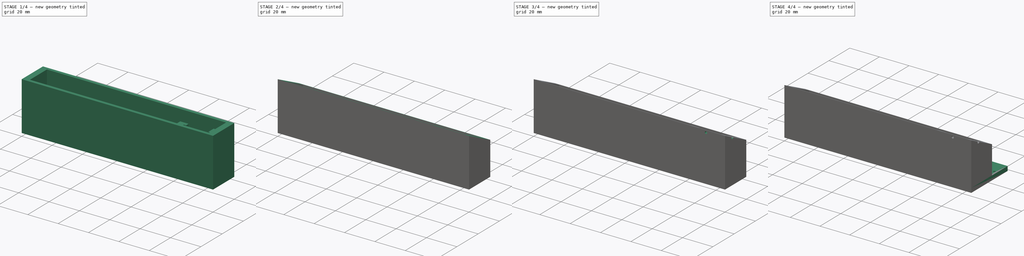
[diagram: build sequence overview — one tinted view per stage of 4, left to right]
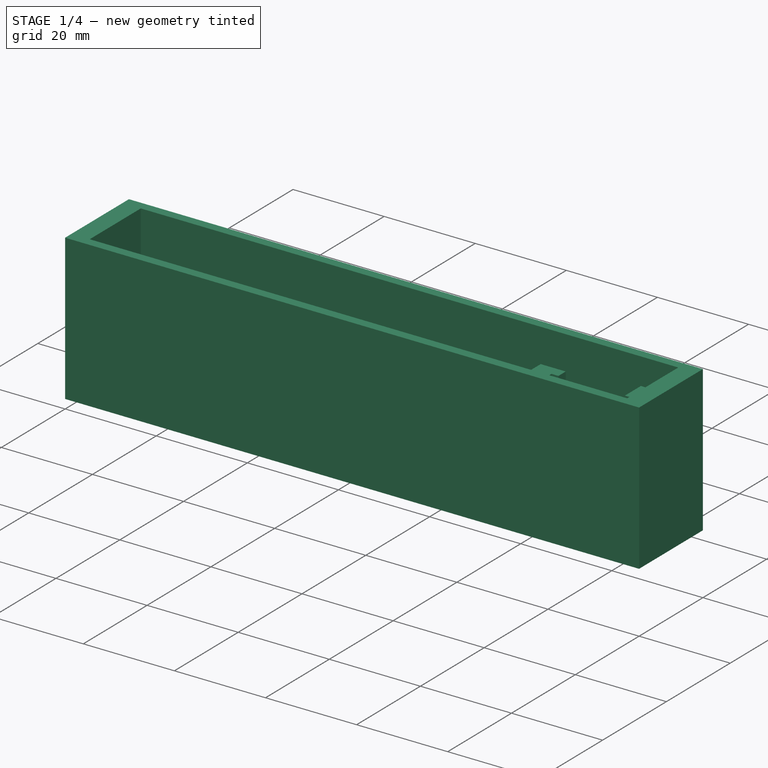
[diagram: stage 1 of 4 — iso view after this stage's code; geometry added in this stage tinted green]
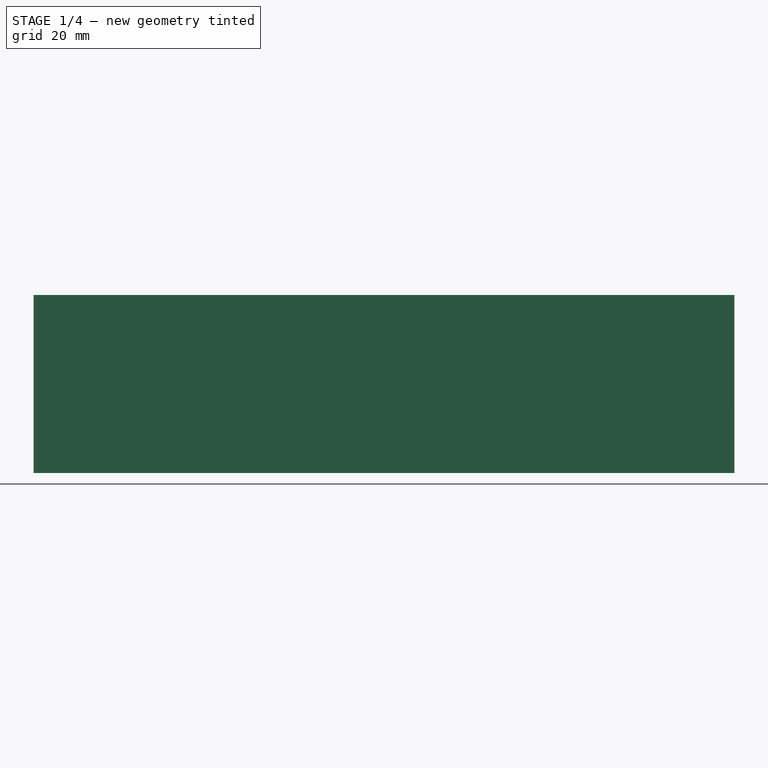
[diagram: stage 1 of 4 — front view after this stage's code; geometry added in this stage tinted green]
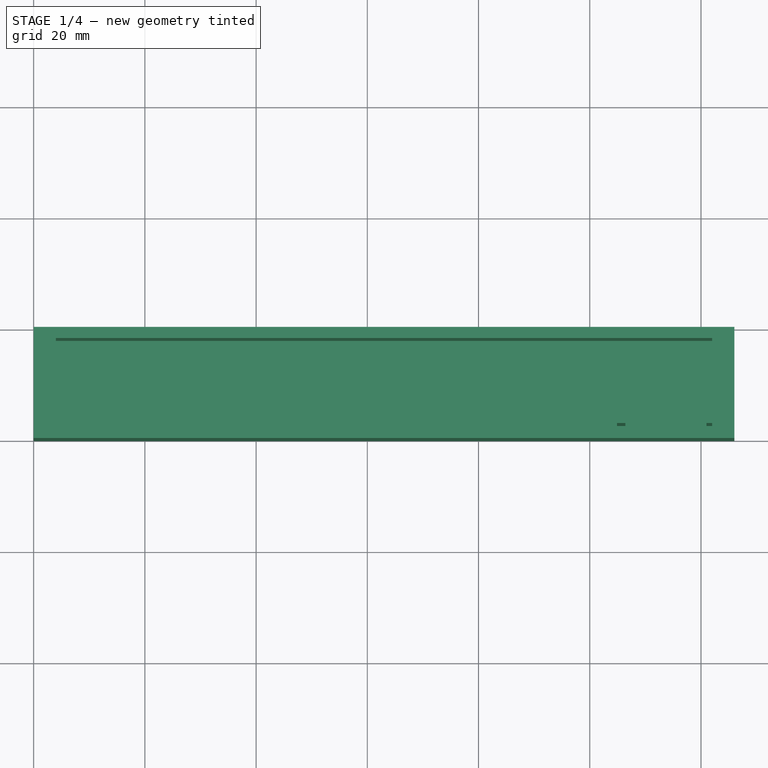
[diagram: stage 1 of 4 — top view after this stage's code; geometry added in this stage tinted green]
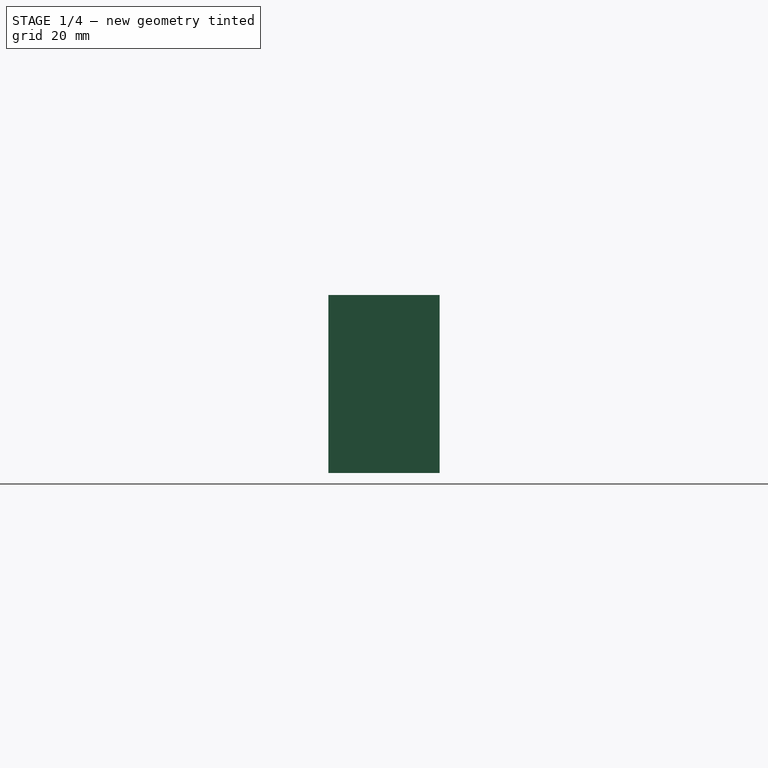
[diagram: stage 1 of 4 — right view after this stage's code; geometry added in this stage tinted green]
FCSTD DOCUMENT  (FreeCAD 1.0R39319 (Git))
Label: shield_charger
License: All rights reserved
LicenseURL: https://en.wikipedia.org/wiki/All_rights_reserved
objects: Sketcher::SketchObject×12, PartDesign::Pad×6, PartDesign::Pocket×6, PartDesign::Body×3, Spreadsheet::Sheet×1, PartDesign::Thickness×1, PartDesign::Draft×1
note: 69 computed .brp shape members not serialized (recipe doc carries the construction recipe); baked Part::Feature solids carry a one-line shape summary decoded from their .brp

FEATURE [Sketcher::SketchObject] Sketch
  ArcFitTolerance = 1e-06
  AttachmentSupport = -> [XY_Plane]
  FullyConstrained = true
  MakeInternals = false
  MapMode = 5
  expr: Constraints[8] = Spreadsheet.box_depth
  expr: Constraints[9] = <<Spreadsheet>>.box_width
  sketch-geometry (4):
    g0: LineSegment StartX=0 StartY=20 StartZ=0 EndX=0 EndY=0 EndZ=0
    g1: LineSegment StartX=0 StartY=0 StartZ=0 EndX=126 EndY=0 EndZ=0
    g2: LineSegment StartX=126 StartY=0 StartZ=0 EndX=126 EndY=20 EndZ=0
    g3: LineSegment StartX=126 StartY=20 StartZ=0 EndX=0 EndY=20 EndZ=0
  constraints (12):
    c: Coincident(g0,g1)
    c: Coincident(g1,g2)
    c: Coincident(g2,g3)
    c: Coincident(g3,g0)
    c: Vertical(g0)
    c: Vertical(g2)
    c: Horizontal(g1)
    c: Horizontal(g3)
    c: DistanceY(g0,g0) = 20
    c: DistanceX(g3,g3) = 126
    c: DistanceX(g0,g-1) = 0
    c: DistanceY(g0,g-1) = 0
FEATURE [PartDesign::Pad] Pad
  Direction = (0,0,1)
  Length = 32
  Length2 = 10
  Profile = -> Sketch
  ReferenceAxis = -> Sketch [N_Axis]
  Refine = true
  Suppressed = false
  Type = 0
  expr: Length = <<Spreadsheet>>.box_height
FEATURE [Spreadsheet::Sheet] Spreadsheet
  cells = A1='Box Width; B1(box_width)==126 mm; A2='Slope Height; B2(slope_height)==10 mm; A3='Box Height; B3(box_height)==32 mm; A4='Box Side Thickness; B4(box_side_thickness)==2 mm; A5='Box Depth; B5(box_depth)==20 mm; A6='Draft Angle; B6(draft_angle)=26.565; A8='USB Width; B8(usb_width)==7.6 mm; A9='USB Height; B9(usb_height)==2.6 mm; A10='USB X; B10(usb_x)==box_width - (pcb_width - usb_width) / 2 - box_inner_thickness - box_side_thickness; A11='USB Y; B11(usb_y)==box_side_thickness + pcb_thickness; A12='USB X Center; B12(usb_x_center)==usb_x - usb_width / 2; A13='USB Y Center; B13(usb_y_center)==usb_y + usb_height / 2; A15='LED Cut X; B15(led_cut_x)==usb_x + 2.5 mm; A16='LED Cut Y; B16(led_cut_y)==usb_y + usb_height; A17='LED Cut Size; B17(led_cut_size)==2 mm; A19='PCB Thickness; B19(pcb_thickness)==0.7 mm; A20='PCB Length; B20(pcb_length)==27.8 mm; A21='PCB Width; B21(pcb_width)==17.1 mm; A22='PCB Right Clip Height; B22(pcb_right_clip_height)==5 mm; A23='PCB Right Clip Width; B23(pcb_right_clip_width)==1 mm; A24='PCB Right Clip X; B24(pcb_right_clip_x)==box_width - box_side_thickness - box_inner_thickness; A25='PCB Right Clip Y; B25(pcb_right_clip_y)==box_side_thickness + pcb_thickness; A26='PCB Left Clip Height; B26(pcb_left_clip_height)==3 mm; A27='PCB Left Clip Width; B27(pcb_left_clip_width)==4 mm; A28='PCB Left Clip X; B28(pcb_left_clip_x)==box_width - box_side_thickness - pcb_width - box_inner_thickness; A29='PCB Left Clip Y; B29(pcb_left_clip_y)==box_side_thickness * -1; A30='PCB Left Clip Notch; B30(pcb_left_clip_notch)==1.5 mm; A31='PCB Screw X; B31(pcb_screw_x)==pcb_left_clip_x + pcb_width / 2; A32='PCB Screw Y; B32(pcb_screw_y)==box_side_thickness + pcb_length + thread_hole / 2; A34='Battery Container Height; B34(battery_container_height)==box_depth - box_side_thickness * 2; A35='Battery Container Width; B35(battery_container_width)==58 mm; A36='Battery Container Thickness; B36(battery_container_thickness)==3 mm; A37='Battery Container X; B37(battery_container_x)==box_side_thickness + 35 mm; A38='Battery Container Y; B38(battery_container_y)==box_side_thickness; A39='Battery Container Depth; B39(battery_container_depth)==12 mm; A40='Battery Container Left Side X; B40(battery_container_left_side_x)==battery_container_x; A41='Battery Container Right Side X; B41(battery_container_right_side_x)==battery_container_x + battery_container_thickness + battery_container_width; A42='Box Inner Thickness; B42(box_inner_thickness)==2 mm; A43='Thread Hole; B43(thread_hole)==1.5 mm; A44='Drafted Height; B44(drafted_height)==box_depth / cos(draft_angle); A45='Drafter Y Disposition; B45(drafted_y_disposition)==14.36 mm; A46='Rear Bottom Screw Y Disposition; B46(rear_bottom_screw_y_disposition)==1 mm; A47='Rear Top Left Screw X; B47(rear_top_left_screw_x)==box_side_thickness; A48='Rear Top Left Screw Y; B48(rear_top_left_screw_y)==drafted_height - box_side_thickness - drafted_y_disposition; A49='Rear Top Right Screw X; B49(rear_top_right_screw_x)==box_width - box_side_thickness; A50='Rear Top Right Screw Y; B50(rear_top_right_screw_y)==drafted_height - box_side_thickness - drafted_y_disposition; A51='Rear Bottom Left Screw X; B51(rear_bottom_left_screw_x)==box_side_thickness; A52='Rear Bottom Left Screw Y; B52(rear_bottom_left_screw_y)==box_side_thickness - drafted_y_disposition + rear_bottom_screw_y_disposition; A53='Rear Bottom Right Screw X; B53(rear_bottom_right_screw_x)==box_width - box_side_thickness; A54='Rear Bottom Right Screw Y; B54(rear_bottom_right_screw_y)==box_side_thickness - drafted_y_disposition + rear_bottom_screw_y_disposition; A55='Rear Screw Length; B55(rear_screw_length)==4 mm; A57='Battery Thickness; B57(battery_thickness)==16.3 mm; A59='Rear Cover Y Displacement; B59(rear_cover_y_displacement)==0 mm; A60='Rear Cover Top Left Screw X; B60(rear_cover_top_left_screw_x)==box_side_thickness; A61='Rear Cover Top Left Screw Y; B61(rear_cover_top_left_screw_y)==drafted_height - box_side_thickness; A62='Rear Cover Top Right Screw X; B62(rear_cover_top_right_screw_x)==box_width - box_side_thickness; A63='Rear Cover Top Right Screw Y; B63(rear_cover_top_right_screw_y)==drafted_height - box_side_thickness; A64='Rear Cover Bottom Left Screw X; B64(rear_cover_bottom_left_screw_x)==box_side_thickness; A65='Rear Cover Bottom Left Screw Y; B65(rear_cover_bottom_left_screw_y)==box_side_thickness + rear_bottom_screw_y_disposition; A66='Rear Cover Bottom Right Screw X; B66(rear_cover_bottom_right_screw_x)==box_width - box_side_thickness; A67='Rear Cover Bottom Right Screw Y; B67(rear_cover_bottom_right_screw_y)==box_side_thickness + rear_bottom_screw_y_disposition; A68='Rear Cover Battery Bottom Distance; B68(rear_cover_battery_bottom_distance)==box_height - 2 * box_side_thickness - battery_thickness + box_side_thickness * sin(draft_angle); A69='Rear Cover Battery Holder Height; B69(rear_cover_battery_holder_height)==box_depth - 2 * box_side_thickness; A71='Rear Cover Battery Holder Y; B71(rear_cover_battery_holder_y)==box_side_thickness / cos(draft_angle); A72='Rear Cover Battery Container Width; B72(rear_cover_battery_container_width)==battery_container_width - 10 mm; A73='Rear Cover Battery Container X; B73(rear_cover_battery_container_x)==battery_container_x + battery_container_thickness + (battery_container_width - rear_cover_battery_container_width) / 2; A75='Power Wire Thickness; B75(power_wire_thickness)==2 mm; A76='Power Wire Slit X; B76(power_wire_slit_x)==pcb_right_clip_height + box_side_thickness; A77='Power Wire Slit Y; B77(power_wire_slit_y)==box_height - tan(draft_angle) * power_wire_slit_x; A78='Power Wire Slit Length; B78(power_wire_slit_length)==box_side_thickness + box_inner_thickness + pcb_right_clip_width; A80='Box Coupler Left Screw X; B80(box_coupler_left_screw_x)==box_side_thickness; A81='Box Coupler Left Screw Y; B81(box_coupler_left_screw_y)==box_depth / 2; A82='Box Coupler Right Screw X; B82(box_coupler_right_screw_x)==box_width - box_side_thickness; A83='Box Coupler Right Screw Y; B83(box_coupler_right_screw_y)==box_depth / 2; A84='Box Coupler Screw Depth; B84(box_coupler_screw_depth)==10 mm; A86='Coupler Shield Overflow; B86(coupler_shield_overflow)==15 mm; A87='Coupler Width; B87(coupler_width)==126 mm; A88='Coupler Height; B88(coupler_height)==box_depth + coupler_shield_overflow; A89='Coupler Thickness; B89(coupler_thickness)==3 mm; A91='Coupler Box Left Screw X; B91(coupler_box_left_screw_x)==box_side_thickness; A92='Coupler Box Left Screw Y; B92(coupler_box_left_screw_y)==coupler_shield_overflow + box_depth / 2; A93='Coupler Box Right Screw X; B93(coupler_box_right_screw_x)==box_width - box_side_thickness; A94='Coupler Box Right Screw Y; B94(coupler_box_right_screw_y)==coupler_shield_overflow + box_depth / 2; A96='Coupler Screw Thickness; B96(coupler_screw_thickness)==2.5 mm; A97='Coupler Screw X Distance; B97(coupler_screw_x_distance)==5 mm; A98='Coupler Screw Y Distance; B98(coupler_screw_y_distance)==9.8 mm; A99='Coupler Shield Left Screw X; B99(coupler_shield_left_screw_x)==coupler_screw_x_distance; A100='Coupler Shield Left Screw Y; B100(coupler_shield_left_screw_y)==coupler_shield_overflow - coupler_screw_y_distance; A101='Coupler Shield Right Screw X; B101(coupler_shield_right_screw_x)==coupler_width - coupler_screw_x_distance; A102='Coupler Shield Right Screw Y; B102(coupler_shield_right_screw_y)==coupler_shield_overflow - coupler_screw_y_distance; A103='Coupler USB Cut Width; B103(coupler_usb_cut_width)==usb_width * 2; A104='Coupler USB Cut Heigh; B104(coupler_usb_cut_height)==usb_height * 2; A105='Coupler USB Cut X; B105(coupler_usb_cut_x)==usb_x_center - coupler_usb_cut_width / 2; A106='Coupler USB Cut Y; B106(coupler_usb_cut_y)==coupler_shield_overflow + usb_y_center - coupler_usb_cut_height / 2
FEATURE [Sketcher::SketchObject] Sketch001
  ArcFitTolerance = 1e-06
  AttachmentSupport = -> [XY_Plane]
  ExternalGeometry = -> [Sketch]
  FullyConstrained = true
  MakeInternals = false
  MapMode = 5
  expr: Constraints[10] = Spreadsheet.usb_x
  expr: Constraints[11] = Spreadsheet.usb_y
  expr: Constraints[12] = Spreadsheet.led_cut_size
  expr: Constraints[13] = Spreadsheet.led_cut_x
  expr: Constraints[14] = Spreadsheet.led_cut_y
  expr: Constraints[8] = Spreadsheet.usb_width
  expr: Constraints[9] = Spreadsheet.usb_height
  sketch-geometry (5):
    g0: LineSegment StartX=109.65 StartY=5.3 StartZ=0 EndX=109.65 EndY=2.7 EndZ=0
    g1: LineSegment StartX=109.65 StartY=2.7 StartZ=0 EndX=117.25 EndY=2.7 EndZ=0
    g2: LineSegment StartX=117.25 StartY=2.7 StartZ=0 EndX=117.25 EndY=5.3 EndZ=0
    g3: LineSegment StartX=117.25 StartY=5.3 StartZ=0 EndX=109.65 EndY=5.3 EndZ=0
    g4: Circle CenterX=119.75 CenterY=5.3 CenterZ=0 NormalX=0 NormalY=0 NormalZ=1 AngleXU=0 Radius=1
  constraints (15):
    c: Coincident(g0,g1)
    c: Coincident(g1,g2)
    c: Coincident(g2,g3)
    c: Coincident(g3,g0)
    c: Vertical(g0)
    c: Vertical(g2)
    c: Horizontal(g1)
    c: Horizontal(g3)
    c: DistanceX(g3,g3) = 7.6
    c: DistanceY(g0,g0) = 2.6
    c: DistanceX(g-1,g1) = 117.25
    c: DistanceY(g-1,g1) = 2.7
    c: Diameter(g4) = 2
    c: DistanceX(g-1,g4) = 119.75
    c: DistanceY(g-1,g4) = 5.3
FEATURE [PartDesign::Pocket] Pocket
  BaseFeature = -> Pad
  Direction = (0,0,-1)
  Length = 2
  Length2 = 5
  Profile = -> Sketch001
  ReferenceAxis = -> Sketch001 [N_Axis]
  Refine = true
  Reversed = true
  Suppressed = false
  Type = 0
  expr: Length = Spreadsheet.box_side_thickness
FEATURE [PartDesign::Thickness] Thickness
  Base = -> Pocket [Face5]
  BaseFeature = -> Pocket
  Intersection = false
  Join = 0
  Mode = 0
  Refine = true
  Reversed = true
  SupportTransform = false
  Suppressed = false
  Value = 2
  expr: Value = Spreadsheet.box_side_thickness
FEATURE [Sketcher::SketchObject] Sketch002
  ArcFitTolerance = 1e-06
  AttachmentSupport = -> [XY_Plane]
  FullyConstrained = true
  MakeInternals = false
  MapMode = 5
  expr: Constraints[10] = Spreadsheet.pcb_left_clip_height
  expr: Constraints[11] = Spreadsheet.pcb_left_clip_x
  expr: Constraints[20] = Spreadsheet.pcb_right_clip_width
  expr: Constraints[21] = Spreadsheet.pcb_right_clip_height
  expr: Constraints[22] = Spreadsheet.pcb_right_clip_x
  expr: Constraints[23] = Spreadsheet.pcb_right_clip_y
  expr: Constraints[24] = Spreadsheet.pcb_left_clip_y
  expr: Constraints[29] = Spreadsheet.pcb_left_clip_width
  expr: Constraints[39] = Spreadsheet.box_inner_thickness
  expr: Constraints[40] = Spreadsheet.box_side_thickness
  expr: Constraints[49] = Spreadsheet.box_depth - 2 * Spreadsheet.box_side_thickness
  expr: Constraints[4] = Spreadsheet.pcb_thickness
  expr: Constraints[50] = Spreadsheet.box_inner_thickness
  expr: Constraints[51] = Spreadsheet.box_side_thickness
  expr: Constraints[52] = Spreadsheet.box_side_thickness
  expr: Constraints[53] = Spreadsheet.box_depth - 2 * Spreadsheet.box_side_thickness
  expr: Constraints[5] = Spreadsheet.pcb_left_clip_notch
  sketch-geometry (18):
    g0: LineSegment StartX=100.9 StartY=2 StartZ=0 EndX=100.9 EndY=5 EndZ=0
    g1: LineSegment StartX=100.9 StartY=5 StartZ=0 EndX=106.4 EndY=5 EndZ=0
    g2: LineSegment StartX=106.4 StartY=5 StartZ=0 EndX=106.4 EndY=2.7 EndZ=0
    g3: LineSegment StartX=106.4 StartY=2.7 StartZ=0 EndX=104.9 EndY=2.7 EndZ=0
    g4: LineSegment StartX=104.9 StartY=2.7 StartZ=0 EndX=104.9 EndY=2 EndZ=0
    g5: LineSegment StartX=121 StartY=7.7 StartZ=0 EndX=121 EndY=2.7 EndZ=0
    g6: LineSegment StartX=121 StartY=2.7 StartZ=0 EndX=122 EndY=2.7 EndZ=0
    g7: LineSegment StartX=122 StartY=2.7 StartZ=0 EndX=122 EndY=7.7 EndZ=0
    g8: LineSegment StartX=122 StartY=7.7 StartZ=0 EndX=121 EndY=7.7 EndZ=0
    g9: LineSegment StartX=100.9 StartY=2 StartZ=0 EndX=104.9 EndY=2 EndZ=0
    g10: LineSegment StartX=122 StartY=18 StartZ=0 EndX=122 EndY=2 EndZ=0
    g11: LineSegment StartX=122 StartY=2 StartZ=0 EndX=124 EndY=2 EndZ=0
    g12: LineSegment StartX=124 StartY=2 StartZ=0 EndX=124 EndY=18 EndZ=0
    g13: LineSegment StartX=124 StartY=18 StartZ=0 EndX=122 EndY=18 EndZ=0
    g14: LineSegment StartX=2 StartY=18 StartZ=0 EndX=2 EndY=2 EndZ=0
    g15: LineSegment StartX=2 StartY=2 StartZ=0 EndX=4 EndY=2 EndZ=0
    g16: LineSegment StartX=4 StartY=2 StartZ=0 EndX=4 EndY=18 EndZ=0
    g17: LineSegment StartX=4 StartY=18 StartZ=0 EndX=2 EndY=18 EndZ=0
  constraints (54):
    c: Horizontal(g1)
    c: Coincident(g2,g1)
    c: Coincident(g3,g2)
    c: Coincident(g4,g3)
    c: DistanceY(g4,g3) = 0.7
    c: Distance(g3,g2) = 1.5
    c: Coincident(g0,g1)
    c: Vertical(g2)
    c: Vertical(g4)
    c: Horizontal(g3)
    c: DistanceY(g0,g0) = 3
    c: DistanceX(g-1,g4) = 104.9
    c: Coincident(g5,g6)
    c: Coincident(g6,g7)
    c: Coincident(g7,g8)
    c: Coincident(g8,g5)
    c: Vertical(g5)
    c: Vertical(g7)
    c: Horizontal(g6)
    c: Horizontal(g8)
    c: DistanceX(g6,g6) = 1
    c: DistanceY(g7,g7) = 5
    c: DistanceX(g-1,g6) = 122
    c: DistanceY(g-1,g6) = 2.7
    c: DistanceY(g4,g-1) = -2
    c: Coincident(g9,g0)
    c: Coincident(g9,g4)
    c: Horizontal(g9)
    c: Vertical(g0,g0)
    c: DistanceX(g9,g9) = 4
    c: Coincident(g10,g11)
    c: Coincident(g11,g12)
    c: Coincident(g12,g13)
    c: Coincident(g13,g10)
    c: Vertical(g10)
    c: Vertical(g12)
    c: Horizontal(g11)
    c: Horizontal(g13)
    c: DistanceX(g10,g6) = 0
    c: DistanceX(g13,g13) = 2
    c: DistanceY(g-1,g10) = 2
    c: Coincident(g14,g15)
    c: Coincident(g15,g16)
    c: Coincident(g16,g17)
    c: Coincident(g17,g14)
    c: Vertical(g14)
    c: Vertical(g16)
    c: Horizontal(g15)
    c: Horizontal(g17)
    c: DistanceY(g12,g12) = 16
    c: DistanceX(g17,g17) = 2
    c: DistanceX(g-1,g14) = 2
    c: DistanceY(g-1,g14) = 2
    c: DistanceY(g14,g14) = 16
FEATURE [PartDesign::Pad] Pad001
  BaseFeature = -> Thickness
  Direction = (0,0,1)
  Length = 32
  Length2 = 10
  Profile = -> Sketch002
  ReferenceAxis = -> Sketch002 [N_Axis]
  Refine = true
  Suppressed = false
  Type = 0
  expr: Length = Spreadsheet.box_height
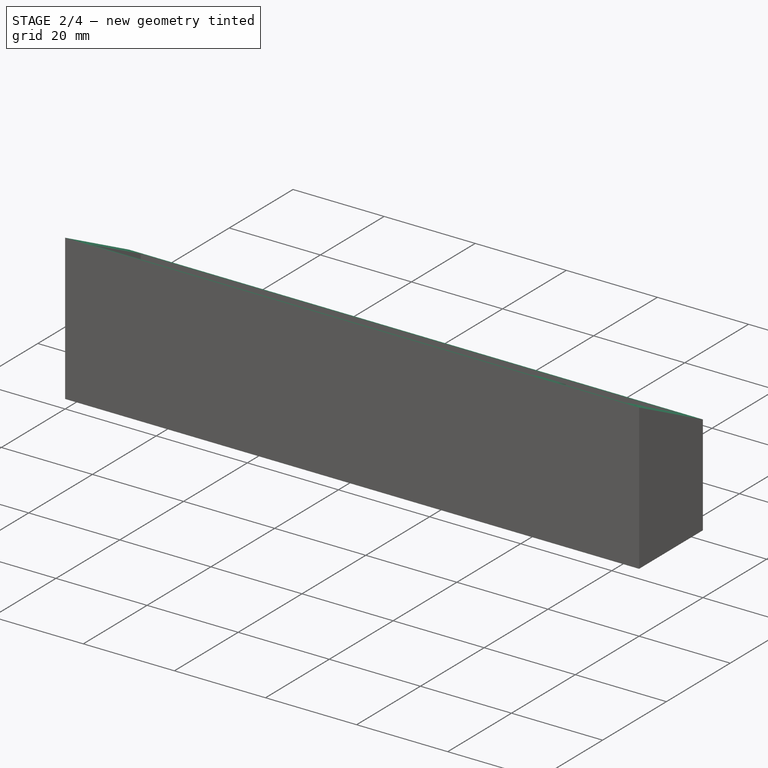
[diagram: stage 2 of 4 — iso view after this stage's code; geometry added in this stage tinted green]
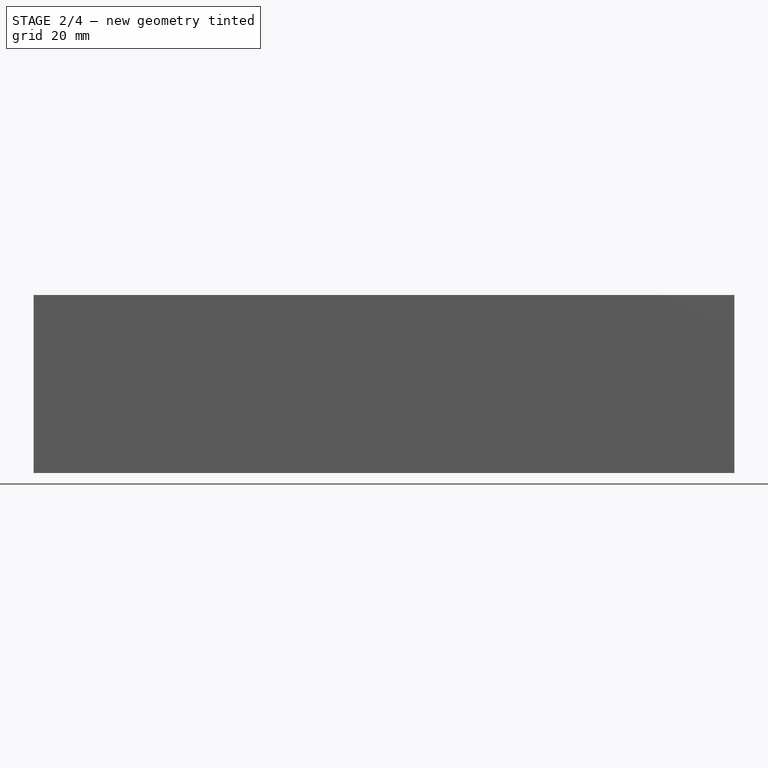
[diagram: stage 2 of 4 — front view after this stage's code; geometry added in this stage tinted green]
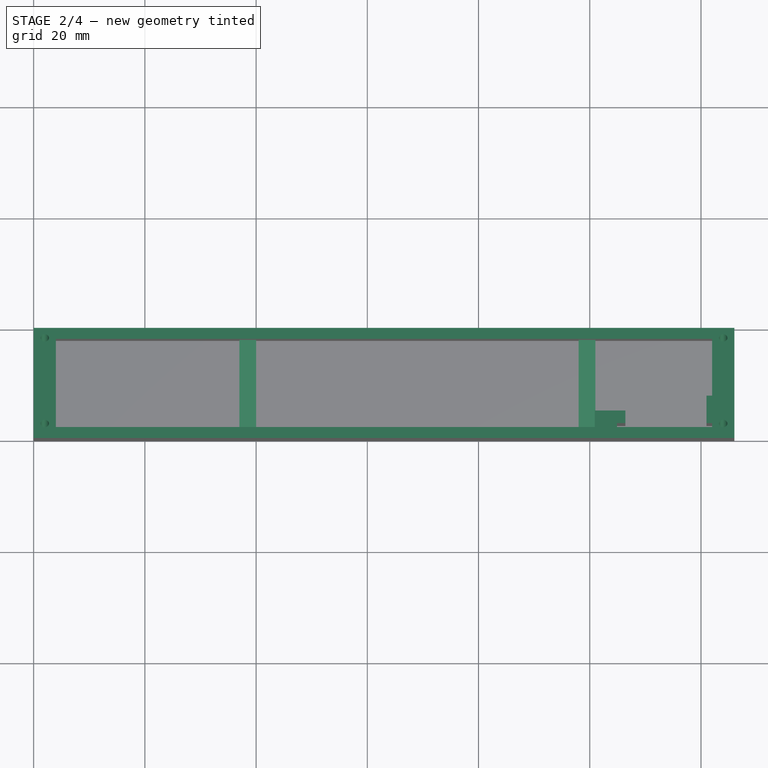
[diagram: stage 2 of 4 — top view after this stage's code; geometry added in this stage tinted green]
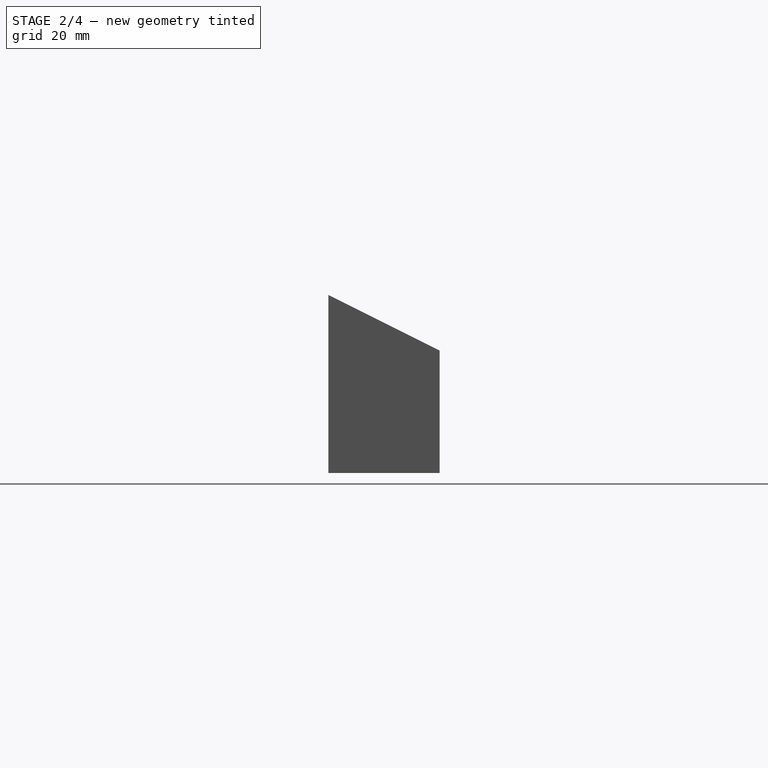
[diagram: stage 2 of 4 — right view after this stage's code; geometry added in this stage tinted green]
FEATURE [Sketcher::SketchObject] Sketch003
  ArcFitTolerance = 1e-06
  AttachmentSupport = -> [XY_Plane]
  FullyConstrained = true
  MakeInternals = false
  MapMode = 5
  expr: Constraints[16] = Spreadsheet.battery_container_height
  expr: Constraints[17] = Spreadsheet.battery_container_thickness
  expr: Constraints[18] = Spreadsheet.battery_container_height
  expr: Constraints[19] = Spreadsheet.battery_container_thickness
  expr: Constraints[20] = Spreadsheet.battery_container_y
  expr: Constraints[21] = Spreadsheet.battery_container_y
  expr: Constraints[22] = Spreadsheet.battery_container_left_side_x
  expr: Constraints[23] = Spreadsheet.battery_container_right_side_x
  sketch-geometry (8):
    g0: LineSegment StartX=37 StartY=18 StartZ=0 EndX=37 EndY=2 EndZ=0
    g1: LineSegment StartX=37 StartY=2 StartZ=0 EndX=40 EndY=2 EndZ=0
    g2: LineSegment StartX=40 StartY=2 StartZ=0 EndX=40 EndY=18 EndZ=0
    g3: LineSegment StartX=40 StartY=18 StartZ=0 EndX=37 EndY=18 EndZ=0
    g4: LineSegment StartX=98 StartY=18 StartZ=0 EndX=98 EndY=2 EndZ=0
    g5: LineSegment StartX=98 StartY=2 StartZ=0 EndX=101 EndY=2 EndZ=0
    g6: LineSegment StartX=101 StartY=2 StartZ=0 EndX=101 EndY=18 EndZ=0
    g7: LineSegment StartX=101 StartY=18 StartZ=0 EndX=98 EndY=18 EndZ=0
  constraints (24):
    c: Coincident(g0,g1)
    c: Coincident(g1,g2)
    c: Coincident(g2,g3)
    c: Coincident(g3,g0)
    c: Vertical(g0)
    c: Vertical(g2)
    c: Horizontal(g1)
    c: Horizontal(g3)
    c: Coincident(g4,g5)
    c: Coincident(g5,g6)
    c: Coincident(g6,g7)
    c: Coincident(g7,g4)
    c: Vertical(g4)
    c: Vertical(g6)
    c: Horizontal(g5)
    c: Horizontal(g7)
    c: DistanceY(g2,g2) = 16
    c: Distance(g3,g3) = 3
    c: DistanceY(g6,g6) = 16
    c: DistanceX(g7,g7) = 3
    c: DistanceY(g-1,g0) = 2
    c: DistanceY(g-1,g4) = 2
    c: DistanceX(g-1,g0) = 37
    c: DistanceX(g-1,g4) = 98
FEATURE [PartDesign::Pad] Pad002
  BaseFeature = -> Pad001
  Direction = (0,0,1)
  Length = 12
  Length2 = 10
  Profile = -> Sketch003
  ReferenceAxis = -> Sketch003 [N_Axis]
  Refine = true
  Suppressed = false
  Type = 0
  expr: Length = Spreadsheet.battery_container_depth
FEATURE [PartDesign::Draft] Draft
  Angle = 26.565
  Base = -> Pad002 [Face4]
  BaseFeature = -> Pad002
  NeutralPlane = -> Pad002 [Face3]
  Refine = true
  SupportTransform = false
  Suppressed = false
  expr: Angle = Spreadsheet.draft_angle
FEATURE [Sketcher::SketchObject] Sketch004
  ArcFitTolerance = 1e-06
  AttachmentSupport = -> [Draft]
  FullyConstrained = true
  MakeInternals = false
  MapMode = 5
  Placement = pos=(0,12.8,25.6) rot=(-1,0,0;0.463647rad)
  expr: Constraints[0] = Spreadsheet.thread_hole
  expr: Constraints[10] = Spreadsheet.rear_bottom_right_screw_y
  expr: Constraints[11] = Spreadsheet.rear_top_right_screw_y
  expr: Constraints[1] = Spreadsheet.thread_hole
  expr: Constraints[2] = Spreadsheet.thread_hole
  expr: Constraints[3] = Spreadsheet.thread_hole
  expr: Constraints[4] = Spreadsheet.rear_top_left_screw_x
  expr: Constraints[5] = Spreadsheet.rear_bottom_left_screw_x
  expr: Constraints[6] = Spreadsheet.rear_bottom_right_screw_x
  expr: Constraints[7] = Spreadsheet.rear_top_right_screw_x
  expr: Constraints[8] = Spreadsheet.rear_bottom_left_screw_y
  expr: Constraints[9] = Spreadsheet.rear_top_left_screw_y
  sketch-geometry (4):
    g0: Circle CenterX=124 CenterY=-11.36 CenterZ=0 NormalX=0 NormalY=0 NormalZ=1 AngleXU=0 Radius=0.75
    g1: Circle CenterX=2 CenterY=6.00067 CenterZ=0 NormalX=0 NormalY=0 NormalZ=1 AngleXU=0 Radius=0.75
    g2: Circle CenterX=2 CenterY=-11.36 CenterZ=0 NormalX=0 NormalY=0 NormalZ=1 AngleXU=0 Radius=0.75
    g3: Circle CenterX=124 CenterY=6.00067 CenterZ=0 NormalX=0 NormalY=0 NormalZ=1 AngleXU=0 Radius=0.75
  constraints (12):
    c: Diameter(g0) = 1.5
    c: Diameter(g1) = 1.5
    c: Diameter(g2) = 1.5
    c: Diameter(g3) = 1.5
    c: DistanceX(g-1,g1) = 2
    c: DistanceX(g-1,g2) = 2
    c: DistanceX(g-1,g0) = 124
    c: DistanceX(g-1,g3) = 124
    c: DistanceY(g-1,g2) = -11.36
    c: DistanceY(g-1,g1) = 6.00067
    c: DistanceY(g-1,g0) = -11.36
    c: DistanceY(g-1,g3) = 6.00067
FEATURE [PartDesign::Pocket] Pocket001
  BaseFeature = -> Draft
  Direction = (0,-0.447213,-0.894428)
  Length = 4
  Length2 = 5
  Profile = -> Sketch004
  ReferenceAxis = -> Sketch004 [N_Axis]
  Refine = true
  Suppressed = false
  Type = 0
  expr: Length = Spreadsheet.rear_screw_length
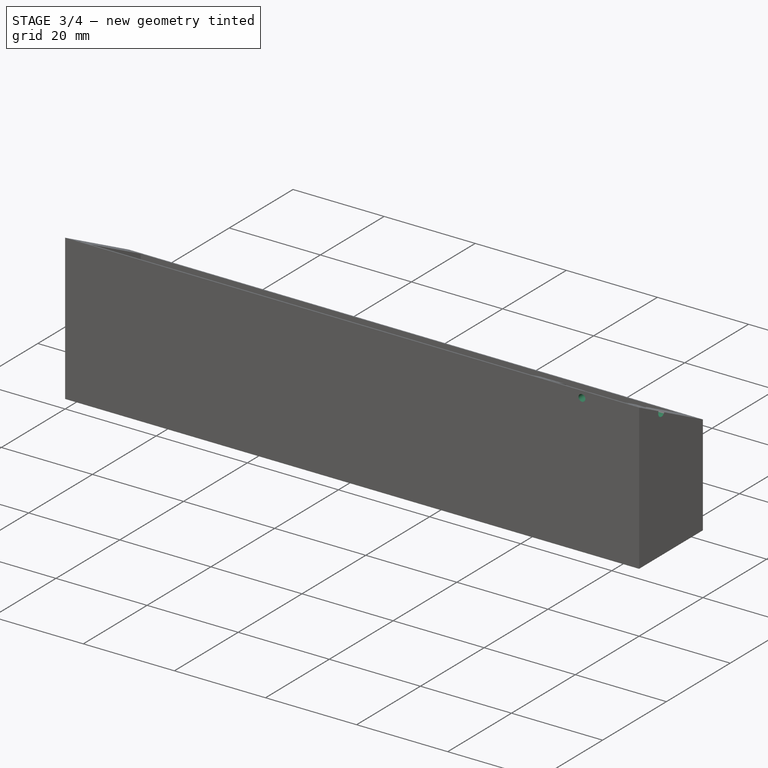
[diagram: stage 3 of 4 — iso view after this stage's code; geometry added in this stage tinted green]
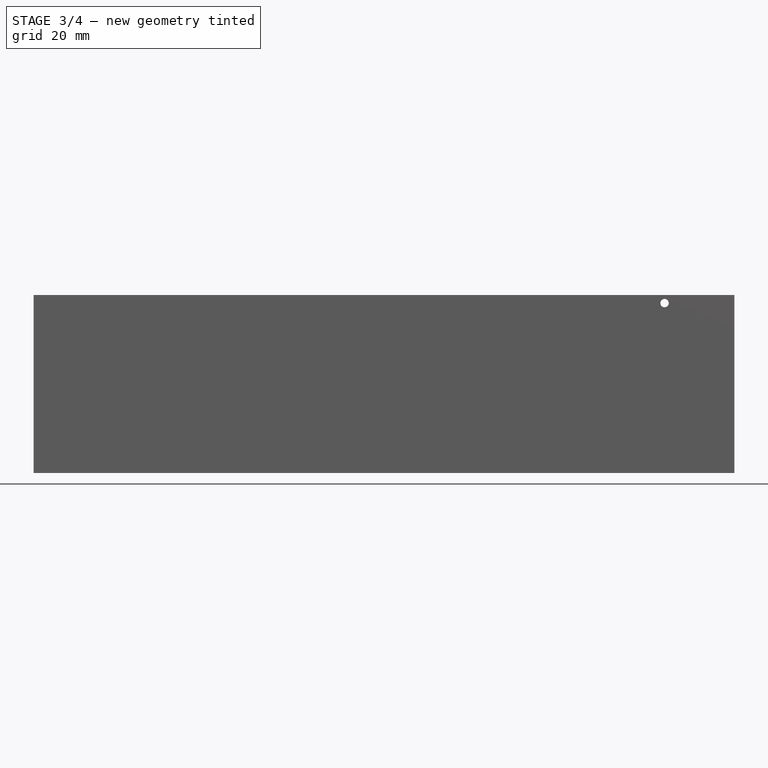
[diagram: stage 3 of 4 — front view after this stage's code; geometry added in this stage tinted green]
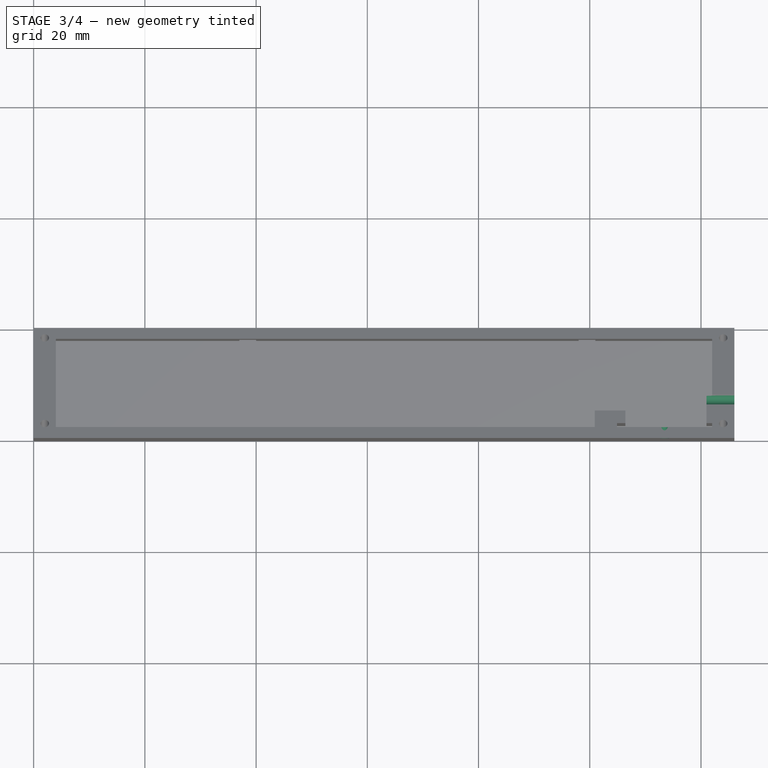
[diagram: stage 3 of 4 — top view after this stage's code; geometry added in this stage tinted green]
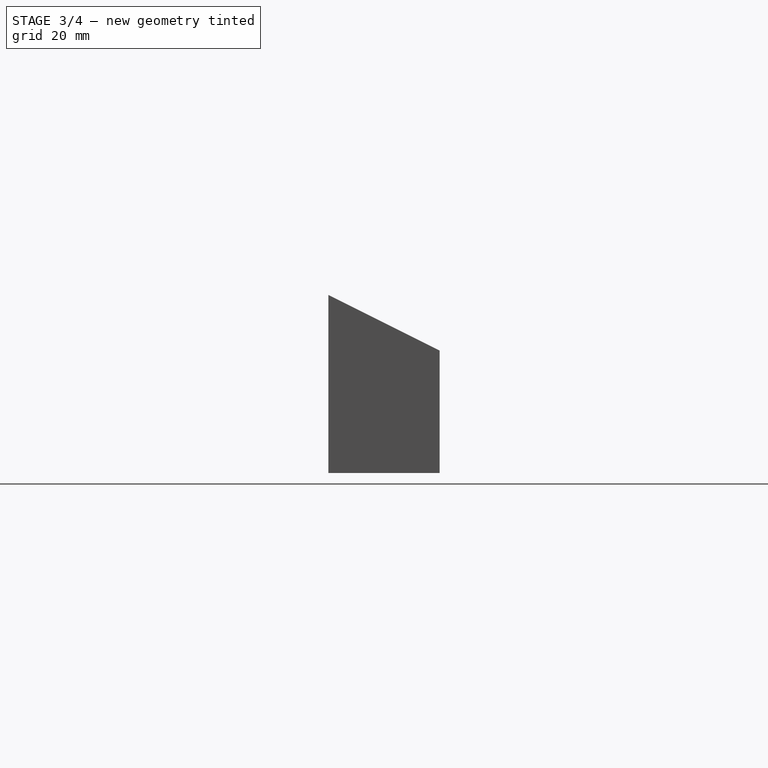
[diagram: stage 3 of 4 — right view after this stage's code; geometry added in this stage tinted green]
FEATURE [PartDesign::Body] Body001  label="Rear Cover"
  AllowCompound = false
  Group = -> [Sketch005,Pad003,Sketch006,Pad004]
  Origin = -> Origin001
  Placement = pos=(0,-30,0) rot=(0,0,1;0rad)
  Tip = -> Pad004
FEATURE [Sketcher::SketchObject] Sketch007
  ArcFitTolerance = 1e-06
  AttachmentSupport = -> [XZ_Plane]
  FullyConstrained = true
  MakeInternals = false
  MapMode = 5
  Placement = pos=(0,0,0) rot=(1,0,0;1.5708rad)
  expr: Constraints[0] = Spreadsheet.thread_hole
  expr: Constraints[1] = Spreadsheet.pcb_screw_x
  expr: Constraints[2] = Spreadsheet.pcb_screw_y
  sketch-geometry (1):
    g0: Circle CenterX=113.45 CenterY=30.55 CenterZ=0 NormalX=0 NormalY=0 NormalZ=1 AngleXU=0 Radius=0.75
  constraints (3):
    c: Diameter(g0) = 1.5
    c: DistanceX(g-1,g0) = 113.45
    c: DistanceY(g-1,g0) = 30.55
FEATURE [PartDesign::Pocket] Pocket002
  BaseFeature = -> Pocket001
  Direction = (0,1,-2e-16)
  Length = 5
  Length2 = 5
  Profile = -> Sketch007
  ReferenceAxis = -> Sketch007 [N_Axis]
  Refine = true
  Suppressed = false
  Type = 0
FEATURE [Sketcher::SketchObject] Sketch008
  ArcFitTolerance = 1e-06
  AttachmentSupport = -> [YZ_Plane]
  FullyConstrained = true
  MakeInternals = false
  MapMode = 5
  Placement = pos=(0,0,0) rot=(0.57735,0.57735,0.57735;2.0944rad)
  expr: Constraints[0] = Spreadsheet.power_wire_thickness
  expr: Constraints[1] = Spreadsheet.power_wire_slit_x
  expr: Constraints[2] = Spreadsheet.power_wire_slit_y
  sketch-geometry (1):
    g0: Circle CenterX=7 CenterY=28.5 CenterZ=0 NormalX=0 NormalY=0 NormalZ=1 AngleXU=0 Radius=1
  constraints (3):
    c: Diameter(g0) = 2
    c: DistanceX(g-1,g0) = 7
    c: DistanceY(g-1,g0) = 28.5
FEATURE [PartDesign::Pocket] Pocket003
  BaseFeature = -> Pocket002
  Direction = (-1,0,0)
  Length = 126
  Length2 = -121
  Offset = 124
  Profile = -> Sketch008
  ReferenceAxis = -> Sketch008 [N_Axis]
  Refine = true
  Reversed = true
  Suppressed = false
  Type = 4
  expr: Length = Spreadsheet.box_width
  expr: Length2 = Spreadsheet.box_width * -1 + Spreadsheet.power_wire_slit_length
  expr: Offset = Spreadsheet.box_width - Spreadsheet.box_side_thickness
FEATURE [PartDesign::Body] Body002  label="Coupler"
  AllowCompound = false
  Group = -> [Sketch009,Pad005,Sketch010,Pocket004]
  Origin = -> Origin002
  Placement = pos=(140,0,0) rot=(0,0,1;0rad)
  Tip = -> Pocket004
FEATURE [Sketcher::SketchObject] Sketch011
  ArcFitTolerance = 1e-06
  AttachmentSupport = -> [XY_Plane]
  FullyConstrained = true
  MakeInternals = false
  MapMode = 5
  expr: Constraints[0] = Spreadsheet.thread_hole
  expr: Constraints[1] = Spreadsheet.thread_hole
  expr: Constraints[2] = Spreadsheet.box_coupler_left_screw_x
  expr: Constraints[3] = Spreadsheet.box_coupler_right_screw_x
  expr: Constraints[4] = Spreadsheet.box_coupler_left_screw_y
  expr: Constraints[5] = Spreadsheet.box_coupler_right_screw_y
  sketch-geometry (2):
    g0: Circle CenterX=2 CenterY=10 CenterZ=0 NormalX=0 NormalY=0 NormalZ=1 AngleXU=0 Radius=0.75
    g1: Circle CenterX=124 CenterY=10 CenterZ=0 NormalX=0 NormalY=0 NormalZ=1 AngleXU=0 Radius=0.75
  constraints (6):
    c: Diameter(g0) = 1.5
    c: Diameter(g1) = 1.5
    c: DistanceX(g-1,g0) = 2
    c: DistanceX(g-1,g1) = 124
    c: DistanceY(g-1,g0) = 10
    c: DistanceY(g-1,g1) = 10
FEATURE [PartDesign::Pocket] Pocket005
  BaseFeature = -> Pocket003
  Direction = (0,0,-1)
  Length = 10
  Length2 = 5
  Profile = -> Sketch011
  ReferenceAxis = -> Sketch011 [N_Axis]
  Refine = true
  Reversed = true
  Suppressed = false
  Type = 0
  expr: Length = Spreadsheet.box_coupler_screw_depth
FEATURE [PartDesign::Body] Body
  AllowCompound = false
  Group = -> [Sketch,Pad,Sketch001,Pocket,Thickness,Sketch002,Pad001,Sketch003,Pad002,Sketch004,Draft,Pocket001,Sketch007,Pocket002,Sketch008,Pocket003,Sketch011,Pocket005]
  Origin = -> Origin
  Tip = -> Pocket005
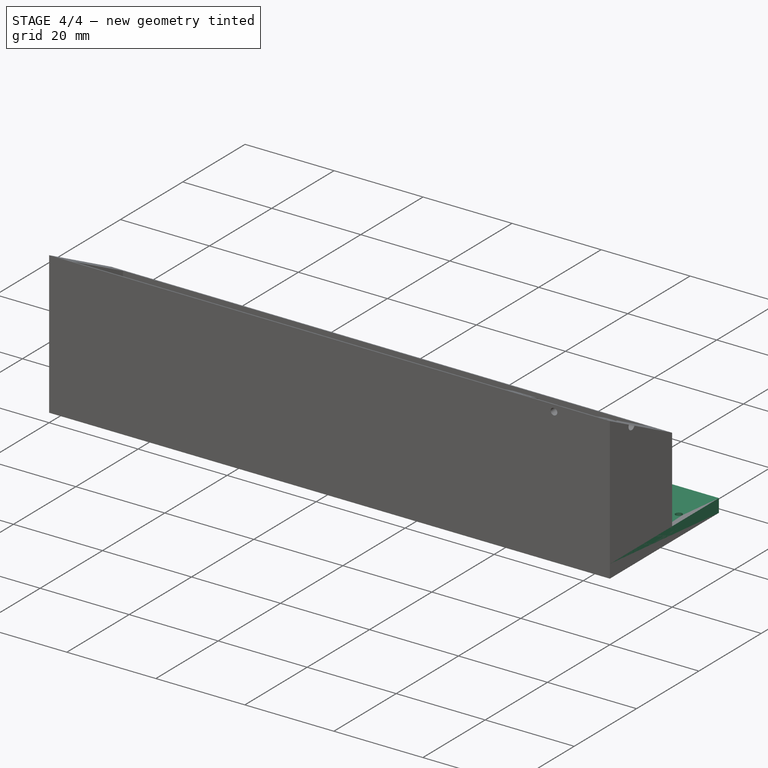
[diagram: stage 4 of 4 — iso view after this stage's code; geometry added in this stage tinted green]
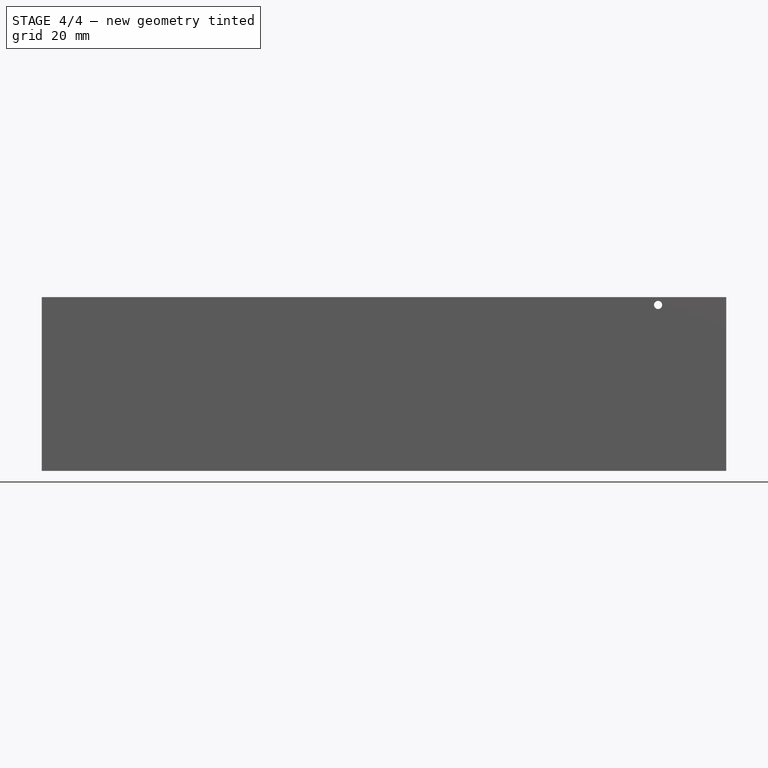
[diagram: stage 4 of 4 — front view after this stage's code; geometry added in this stage tinted green]
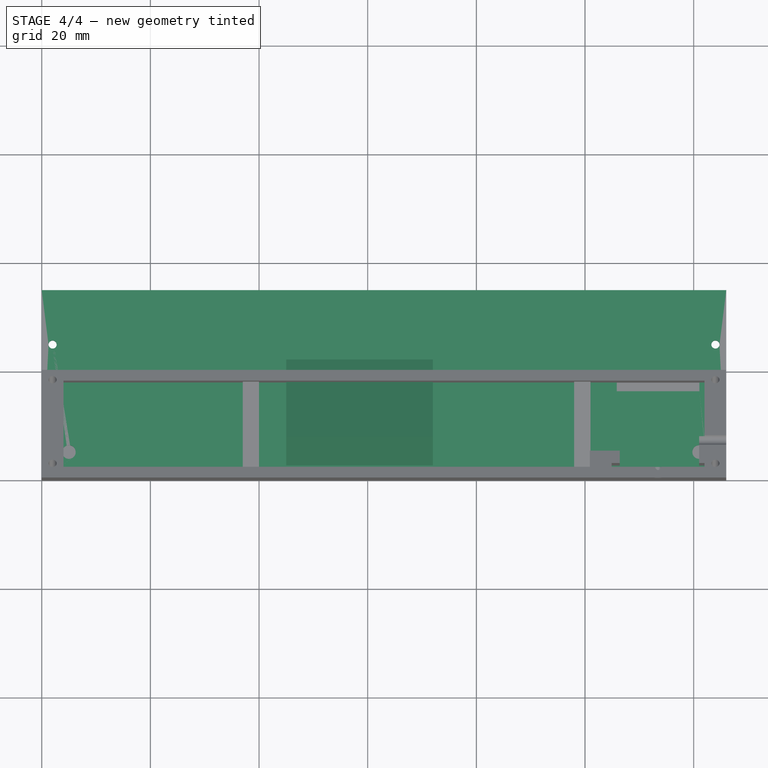
[diagram: stage 4 of 4 — top view after this stage's code; geometry added in this stage tinted green]
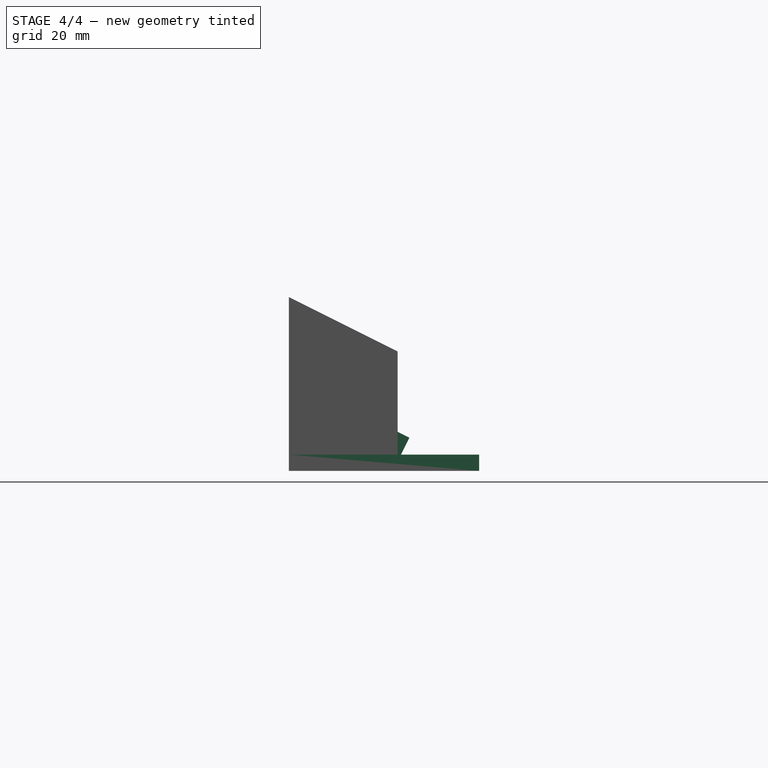
[diagram: stage 4 of 4 — right view after this stage's code; geometry added in this stage tinted green]
FEATURE [Sketcher::SketchObject] Sketch005
  ArcFitTolerance = 1e-06
  AttachmentSupport = -> [XY_Plane001]
  FullyConstrained = true
  MakeInternals = false
  MapMode = 5
  expr: Constraints[10] = Spreadsheet.drafted_height
  expr: Constraints[11] = Spreadsheet.rear_cover_y_displacement
  expr: Constraints[12] = Spreadsheet.thread_hole
  expr: Constraints[13] = Spreadsheet.rear_cover_top_right_screw_x
  expr: Constraints[16] = Spreadsheet.rear_cover_top_left_screw_y
  expr: Constraints[17] = Spreadsheet.rear_cover_top_right_screw_y
  expr: Constraints[18] = Spreadsheet.thread_hole
  expr: Constraints[19] = Spreadsheet.rear_cover_bottom_left_screw_x
  expr: Constraints[20] = Spreadsheet.thread_hole
  expr: Constraints[21] = Spreadsheet.rear_cover_bottom_right_screw_x
  expr: Constraints[22] = Spreadsheet.rear_cover_bottom_left_screw_y
  expr: Constraints[23] = Spreadsheet.rear_cover_bottom_right_screw_y
  expr: Constraints[9] = Spreadsheet.box_width
  sketch-geometry (8):
    g0: LineSegment StartX=0 StartY=22.3607 StartZ=0 EndX=0 EndY=0 EndZ=0
    g1: LineSegment StartX=0 StartY=0 StartZ=0 EndX=126 EndY=0 EndZ=0
    g2: LineSegment StartX=126 StartY=0 StartZ=0 EndX=126 EndY=22.3607 EndZ=0
    g3: LineSegment StartX=126 StartY=22.3607 StartZ=0 EndX=0 EndY=22.3607 EndZ=0
    g4: Circle CenterX=124 CenterY=20.3607 CenterZ=0 NormalX=0 NormalY=0 NormalZ=1 AngleXU=0 Radius=0.75
    g5: Circle CenterX=2 CenterY=20.3607 CenterZ=0 NormalX=0 NormalY=0 NormalZ=1 AngleXU=0 Radius=0.75
    g6: Circle CenterX=2 CenterY=3 CenterZ=0 NormalX=0 NormalY=0 NormalZ=1 AngleXU=0 Radius=0.75
    g7: Circle CenterX=124 CenterY=3 CenterZ=0 NormalX=0 NormalY=0 NormalZ=1 AngleXU=0 Radius=0.75
  constraints (24):
    c: Coincident(g0,g1)
    c: Coincident(g1,g2)
    c: Coincident(g2,g3)
    c: Coincident(g3,g0)
    c: Vertical(g0)
    c: Vertical(g2)
    c: Horizontal(g1)
    c: Horizontal(g3)
    c: PointOnObject(g0,g-2)
    c: DistanceX(g0,g2) = 126
    c: DistanceY(g0,g0) = 22.3607
    c: DistanceY(g0,g-1) = 0
    c: Diameter(g4) = 1.5
    c: DistanceX(g-1,g4) = 124
    c: Diameter(g5) = 1.5
    c: DistanceX(g-1,g5) = 2
    c: DistanceY(g-1,g5) = 20.3607
    c: DistanceY(g-1,g4) = 20.3607
    c: Diameter(g6) = 1.5
    c: DistanceX(g-1,g6) = 2
    c: Diameter(g7) = 1.5
    c: DistanceX(g-1,g7) = 124
    c: DistanceY(g-1,g6) = 3
    c: DistanceY(g-1,g7) = 3
FEATURE [PartDesign::Pad] Pad003
  Direction = (0,0,1)
  Length = 2
  Length2 = 10
  Profile = -> Sketch005
  ReferenceAxis = -> Sketch005 [N_Axis]
  Refine = true
  Suppressed = false
  Type = 0
  expr: Length = Spreadsheet.box_side_thickness
FEATURE [Sketcher::SketchObject] Sketch006
  ArcFitTolerance = 1e-06
  AttachmentSupport = -> [YZ_Plane001]
  FullyConstrained = true
  MakeInternals = false
  MapMode = 5
  Placement = pos=(0,0,0) rot=(0.57735,0.57735,0.57735;2.0944rad)
  expr: Constraints[3] = Spreadsheet.rear_cover_battery_bottom_distance
  expr: Constraints[4] = Spreadsheet.box_side_thickness
  expr: Constraints[5] = Spreadsheet.rear_cover_battery_holder_y
  expr: Constraints[8] = Spreadsheet.rear_cover_battery_holder_height
  expr: Constraints[9] = 90 - Spreadsheet.draft_angle
  sketch-geometry (4):
    g0: LineSegment StartX=2.23607 StartY=2 StartZ=0 EndX=7.86846 EndY=13.2648 EndZ=0
    g1: LineSegment StartX=22.1793 StartY=6.1094 StartZ=0 EndX=20.1246 EndY=2 EndZ=0
    g2: LineSegment StartX=20.1246 StartY=2 StartZ=0 EndX=2.23607 EndY=2 EndZ=0
    g3: LineSegment StartX=7.86846 StartY=13.2648 StartZ=0 EndX=22.1793 EndY=6.1094 EndZ=0
  constraints (12):
    c: Coincident(g2,g1)
    c: Coincident(g2,g0)
    c: Horizontal(g2)
    c: Distance(g0) = 12.5944
    c: DistanceY(g-1,g0) = 2
    c: DistanceX(g-1,g0) = 2.23607
    c: Coincident(g3,g0)
    c: Coincident(g3,g1)
    c: Distance(g3) = 16
    c: Angle(g2,g0) = 1.10715
    c: Perpendicular(g3,g0)
    c: Parallel(g0,g1)
FEATURE [PartDesign::Pad] Pad004
  BaseFeature = -> Pad003
  Direction = (1,0,0)
  Length = 72
  Length2 = -45
  Profile = -> Sketch006
  ReferenceAxis = -> Sketch006 [N_Axis]
  Refine = true
  Suppressed = false
  Type = 4
  UseCustomVector = true
  expr: Length2 = -1 * Spreadsheet.rear_cover_battery_container_x
FEATURE [Sketcher::SketchObject] Sketch009
  ArcFitTolerance = 1e-06
  AttachmentSupport = -> [XY_Plane002]
  FullyConstrained = true
  MakeInternals = false
  MapMode = 5
  expr: Constraints[10] = Spreadsheet.coupler_width
  expr: Constraints[9] = Spreadsheet.coupler_height
  sketch-geometry (4):
    g0: LineSegment StartX=0 StartY=0 StartZ=0 EndX=126 EndY=0 EndZ=0
    g1: LineSegment StartX=126 StartY=0 StartZ=0 EndX=126 EndY=35 EndZ=0
    g2: LineSegment StartX=126 StartY=35 StartZ=0 EndX=0 EndY=35 EndZ=0
    g3: LineSegment StartX=0 StartY=35 StartZ=0 EndX=0 EndY=0 EndZ=0
  constraints (11):
    c: Coincident(g0,g1)
    c: Coincident(g1,g2)
    c: Coincident(g2,g3)
    c: Coincident(g3,g0)
    c: Horizontal(g0)
    c: Horizontal(g2)
    c: Vertical(g1)
    c: Vertical(g3)
    c: Coincident(g0,g-1)
    c: DistanceY(g0,g2) = 35
    c: DistanceX(g2,g1) = 126
FEATURE [PartDesign::Pad] Pad005
  Direction = (0,0,1)
  Length = 3
  Length2 = 10
  Profile = -> Sketch009
  ReferenceAxis = -> Sketch009 [N_Axis]
  Refine = true
  Suppressed = false
  Type = 0
  expr: Length = Spreadsheet.coupler_thickness
FEATURE [Sketcher::SketchObject] Sketch010
  ArcFitTolerance = 1e-06
  AttachmentSupport = -> [XY_Plane002]
  FullyConstrained = true
  MakeInternals = false
  MapMode = 5
  expr: Constraints[0] = Spreadsheet.coupler_screw_thickness
  expr: Constraints[10] = Spreadsheet.coupler_box_left_screw_y
  expr: Constraints[11] = Spreadsheet.coupler_box_right_screw_y
  expr: Constraints[1] = Spreadsheet.coupler_screw_thickness
  expr: Constraints[20] = Spreadsheet.coupler_usb_cut_x
  expr: Constraints[21] = Spreadsheet.coupler_usb_cut_y
  expr: Constraints[22] = Spreadsheet.coupler_usb_cut_width
  expr: Constraints[23] = Spreadsheet.coupler_usb_cut_height
  expr: Constraints[2] = Spreadsheet.thread_hole
  expr: Constraints[3] = Spreadsheet.thread_hole
  expr: Constraints[4] = Spreadsheet.coupler_shield_left_screw_x
  expr: Constraints[5] = Spreadsheet.coupler_shield_right_screw_x
  expr: Constraints[6] = Spreadsheet.coupler_box_left_screw_x
  expr: Constraints[7] = Spreadsheet.coupler_box_right_screw_x
  expr: Constraints[8] = Spreadsheet.coupler_shield_left_screw_y
  expr: Constraints[9] = Spreadsheet.coupler_shield_right_screw_y
  sketch-geometry (8):
    g0: Circle CenterX=121 CenterY=5.2 CenterZ=0 NormalX=0 NormalY=0 NormalZ=1 AngleXU=0 Radius=1.25
    g1: Circle CenterX=5 CenterY=5.2 CenterZ=0 NormalX=0 NormalY=0 NormalZ=1 AngleXU=0 Radius=1.25
    g2: Circle CenterX=2 CenterY=25 CenterZ=0 NormalX=0 NormalY=0 NormalZ=1 AngleXU=0 Radius=0.75
    g3: Circle CenterX=124 CenterY=25 CenterZ=0 NormalX=0 NormalY=0 NormalZ=1 AngleXU=0 Radius=0.75
    g4: LineSegment StartX=105.85 StartY=21.6 StartZ=0 EndX=105.85 EndY=16.4 EndZ=0
    g5: LineSegment StartX=105.85 StartY=16.4 StartZ=0 EndX=121.05 EndY=16.4 EndZ=0
    g6: LineSegment StartX=121.05 StartY=16.4 StartZ=0 EndX=121.05 EndY=21.6 EndZ=0
    g7: LineSegment StartX=121.05 StartY=21.6 StartZ=0 EndX=105.85 EndY=21.6 EndZ=0
  constraints (24):
    c: Diameter(g0) = 2.5
    c: Diameter(g1) = 2.5
    c: Diameter(g2) = 1.5
    c: Diameter(g3) = 1.5
    c: DistanceX(g-1,g1) = 5
    c: DistanceX(g-1,g0) = 121
    c: DistanceX(g-1,g2) = 2
    c: DistanceX(g-1,g3) = 124
    c: DistanceY(g-1,g1) = 5.2
    c: DistanceY(g-1,g0) = 5.2
    c: DistanceY(g-1,g2) = 25
    c: DistanceY(g-1,g3) = 25
    c: Coincident(g4,g5)
    c: Coincident(g5,g6)
    c: Coincident(g6,g7)
    c: Coincident(g7,g4)
    c: Vertical(g4)
    c: Vertical(g6)
    c: Horizontal(g5)
    c: Horizontal(g7)
    c: DistanceX(g-1,g4) = 105.85
    c: DistanceY(g-1,g4) = 16.4
    c: DistanceX(g4,g6) = 15.2
    c: DistanceY(g4,g4) = 5.2
FEATURE [PartDesign::Pocket] Pocket004
  BaseFeature = -> Pad005
  Direction = (0,0,-1)
  Length = 5
  Length2 = 5
  Profile = -> Sketch010
  ReferenceAxis = -> Sketch010 [N_Axis]
  Refine = true
  Reversed = true
  Suppressed = false
  Type = 0
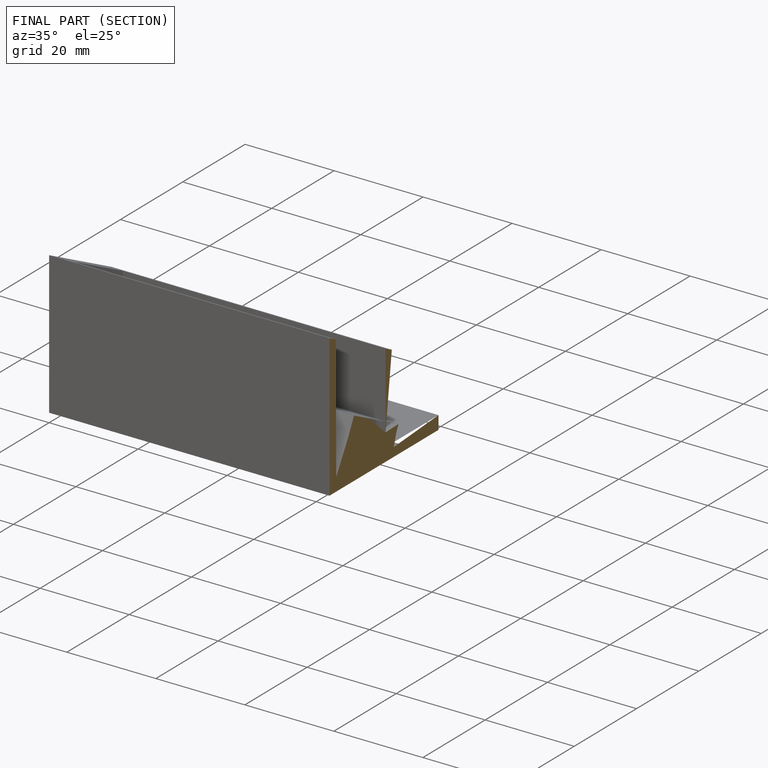
[diagram: finished part — half-section view (interior)]
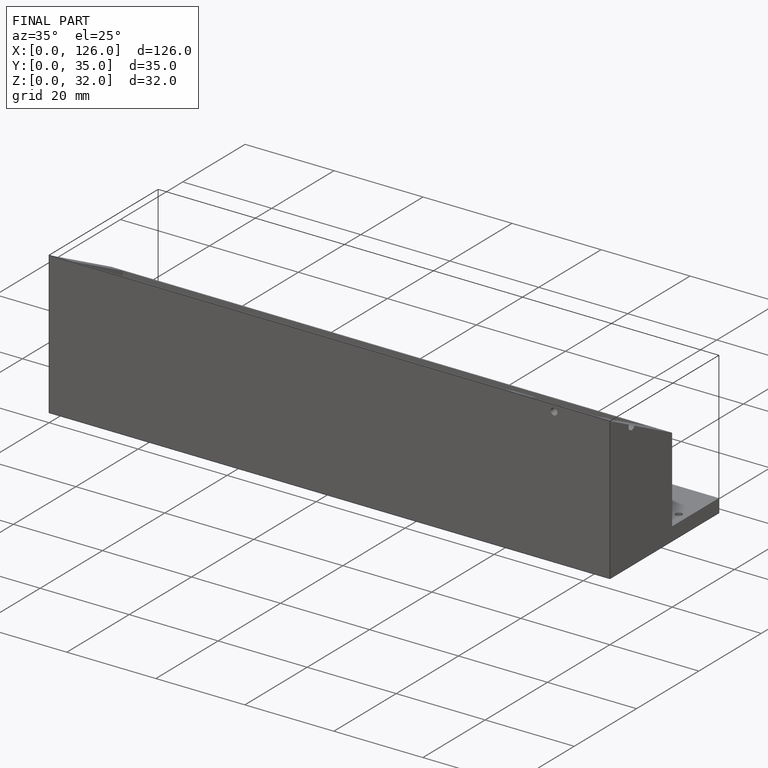
[diagram: finished part — iso view with bounding-box wireframe]
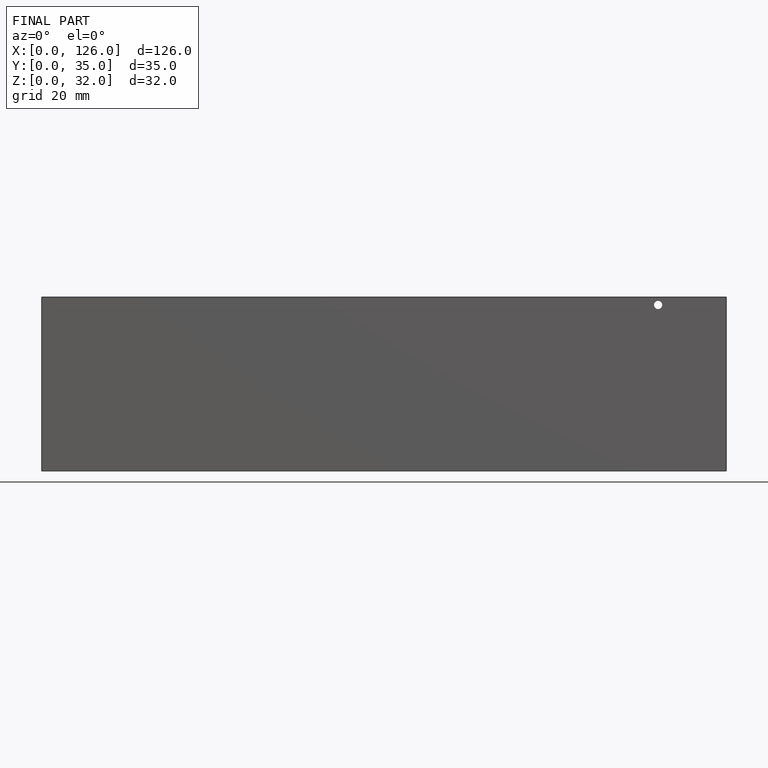
[diagram: finished part — front view with bounding-box wireframe]
